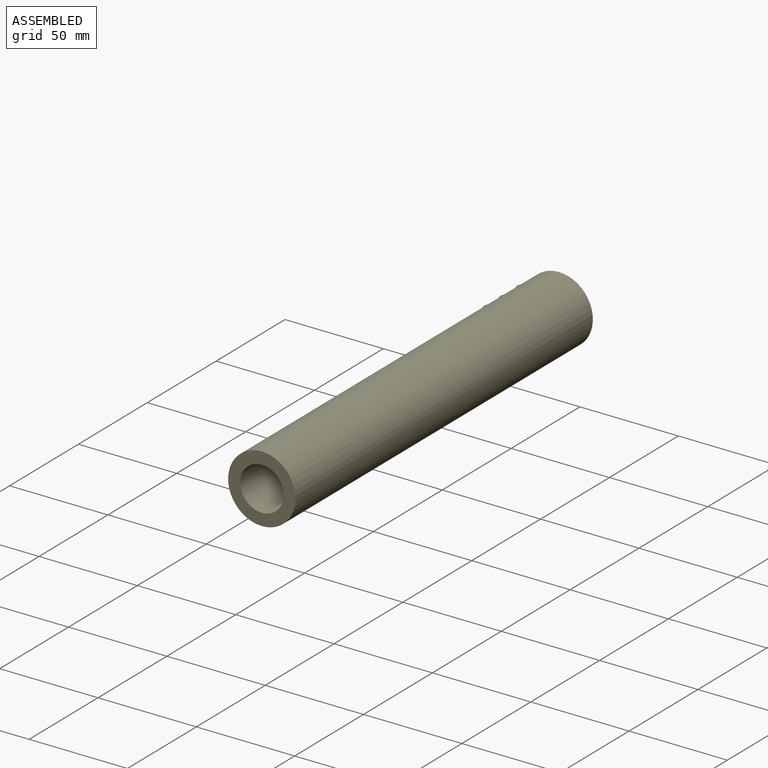
[diagram: assembled view]
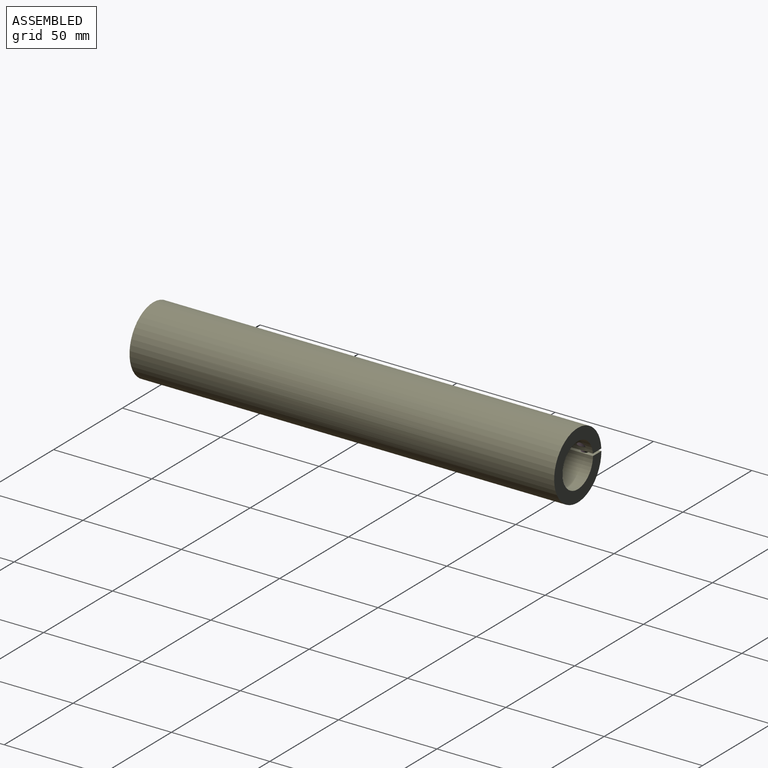
[diagram: assembled view, second angle]
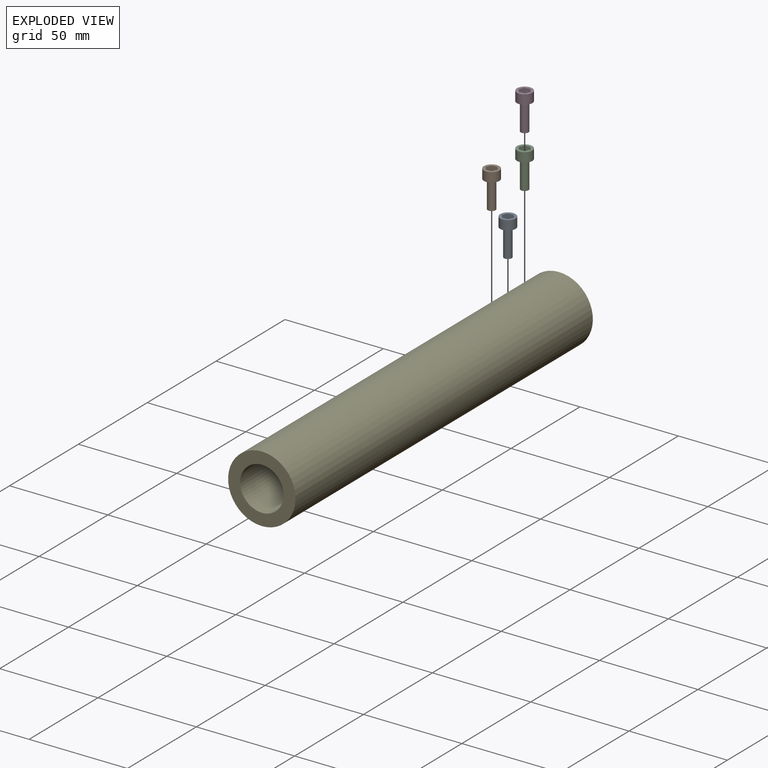
[diagram: exploded view]
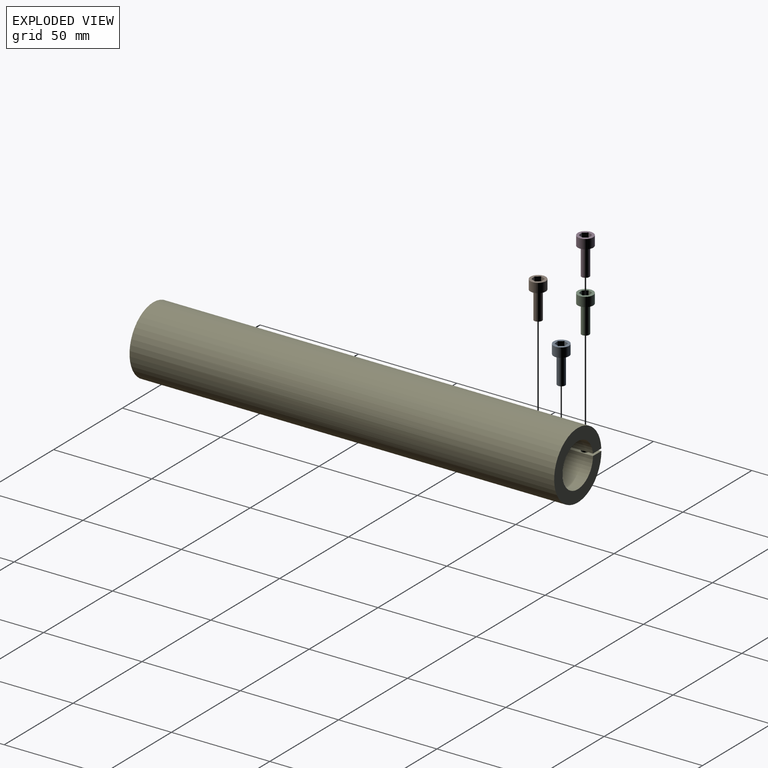
[diagram: exploded view, second angle]
ASSEMBLY  parts=5 mates=4
PART A: 12 faces, bbox 7.8x7.8x18.7 mm
  f0: cylinder r=1.98mm len=13.97mm, axis (0,0,-1), area 174.2mm2, adj f1,f4
  f1: plane 3.97x3.97mm, normal (0,0,-1), area 12.4mm2, adj f0
  f2: cylinder r=3.91mm len=7.82mm, axis (0,0,-1), area 117.4mm2, adj f3,f4
  f3: plane 7.82x7.82mm, normal (0,0,1), area 27.9mm2, adj f2,f5,f6,f7,f8,f9,f10
  f4: plane 7.82x7.82mm, normal (0,0,-1), area 35.7mm2, adj f0,f2
  f5: plane 3.18x2.2mm, normal (0.79,0.61,0), area 8.8mm2, adj f3,f6,f10,f11
  f6: plane 3.18x2.76mm, normal (-0.14,0.99,0), area 8.8mm2, adj f3,f5,f7,f11
  f7: plane 3.18x2.58mm, normal (-0.93,0.38,0), area 8.8mm2, adj f3,f6,f8,f11
  f8: plane 3.18x2.2mm, normal (-0.79,-0.61,0), area 8.8mm2, adj f3,f7,f9,f11
  f9: plane 3.18x2.76mm, normal (0.14,-0.99,0), area 8.8mm2, adj f3,f8,f10,f11
  f10: plane 3.18x2.58mm, normal (0.93,-0.38,0), area 8.8mm2, adj f3,f5,f9,f11
  f11: plane 5.52x5.16mm, normal (0,0,1), area 20.2mm2, adj f5,f6,f7,f8,f9,f10
PART B: same geometry as A
PART C: same geometry as A
PART D: same geometry as A
PART E: 19 faces, bbox 34.3x215.9x34.3 mm
  f0: cylinder r=1.98mm len=3.97mm, axis (0,0,1), area 30.1mm2, adj f8,f18
  f1: cylinder r=1.98mm len=3.97mm, axis (0,0,1), area 30.1mm2, adj f8,f17
  f2: cylinder r=1.98mm len=3.97mm, axis (0,0,1), area 30.1mm2, adj f8,f16
  f3: cylinder r=17.14mm len=215.9mm, axis (0,1,0), area 22874.6mm2, adj f4,f6,f7,f8,f9,f10,f11,f12
  f4: plane 34.29x34.29mm, normal (0,1,0), area 533mm2, adj f3,f5,f8,f9
  f5: cylinder r=11.05mm len=215.9mm, axis (0,1,0), area 14901.2mm2, adj f4,f6,f7,f8,f9
  f6: plane 34.29x34.29mm, normal (0,-1,0), area 539.9mm2, adj f3,f5
  f7: plane 6.16x1.14mm, normal (0,1,0), area 7mm2, adj f3,f5,f8,f9
  f8: plane 76.2x6.12mm, normal (0,0,-1), area 429mm2, adj f0,f1,f2,f3,f4,f5,f7
  f9: plane 76.2x6.1mm, normal (0,0,1), area 427.4mm2, adj f3,f4,f5,f7,f10,f11,f12
  f10: cylinder r=1.98mm len=12.65mm, axis (0,0,1), area 127.4mm2, adj f3,f9
  f11: cylinder r=1.98mm len=12.65mm, axis (0,0,1), area 127.4mm2, adj f3,f9
  f12: cylinder r=1.98mm len=12.6mm, axis (0,0,1), area 126.5mm2, adj f3,f9
  f13: cylinder r=4.03mm len=9.66mm, axis (0,0,-1), area 113.6mm2, adj f3,f17
  f14: cylinder r=3.79mm len=9.46mm, axis (0,0,-1), area 105.7mm2, adj f3,f18
  f15: cylinder r=3.91mm len=9.56mm, axis (0,0,-1), area 109.7mm2, adj f3,f16
  f16: plane 7.82x5.73mm, normal (0,0,1), area 25.4mm2, adj f2,f3,f15
  f17: plane 8.06x5.85mm, normal (0,0,1), area 27.3mm2, adj f1,f3,f13
  f18: plane 7.58x5.61mm, normal (0,0,1), area 23.5mm2, adj f0,f3,f14
PLACE A t=(-66.02,-59.38,-40.54)mm
PLACE B t=(-66.02,-71.18,-40.54)mm
PLACE C t=(-66.07,-47.13,-40.54)mm
PLACE D t=(-66.07,-47.13,-40.54)mm
PLACE E t=(5.59,5.51,-30.13)mm fixed
MATE fastened A.f0 <-> E.f1  axis (0,0,-1) through (-7.97,-12.36,-26.57)mm
MATE fastened D.f0 <-> E.f2  axis (0,0,-1) through (-8.03,-0.11,-26.57)mm
MATE fastened B.f0 <-> E.f0  axis (0,0,-1) through (-7.97,-24.17,-26.57)mm
MATE fastened C.f0 <-> E.f2  axis (0,0,-1) through (-8.03,-0.11,-26.57)mm
